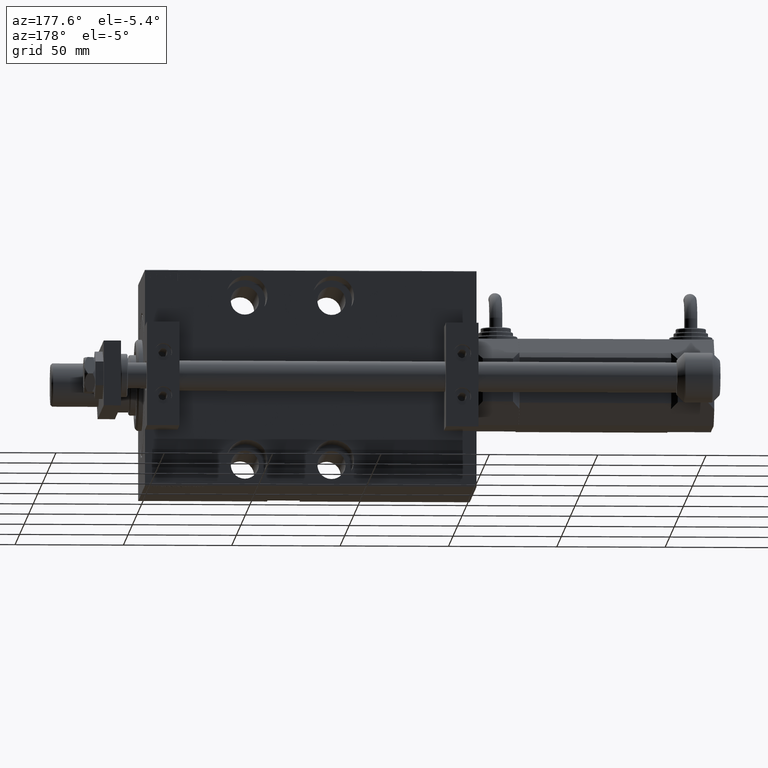
[diagram: clean part render]
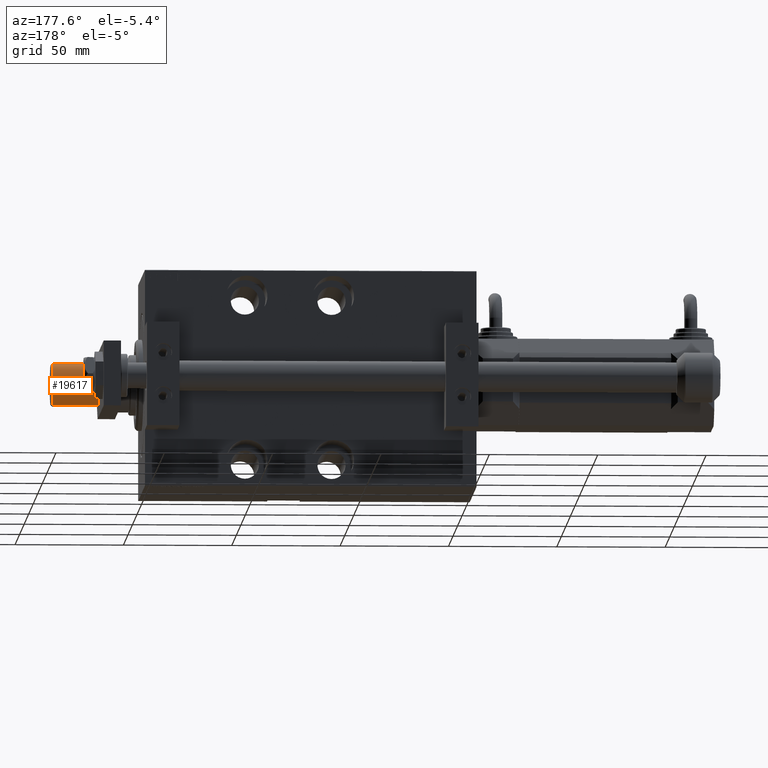
[diagram: same view with one face highlighted and labeled with its STEP entity id]
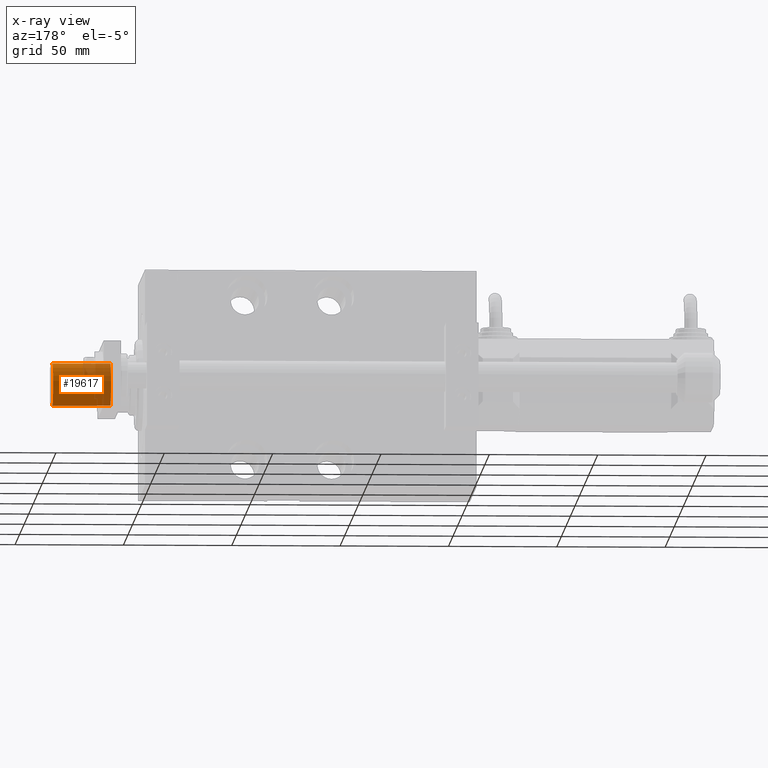
[diagram: x-ray of the same camera — body ghosted, the highlighted face saturated]
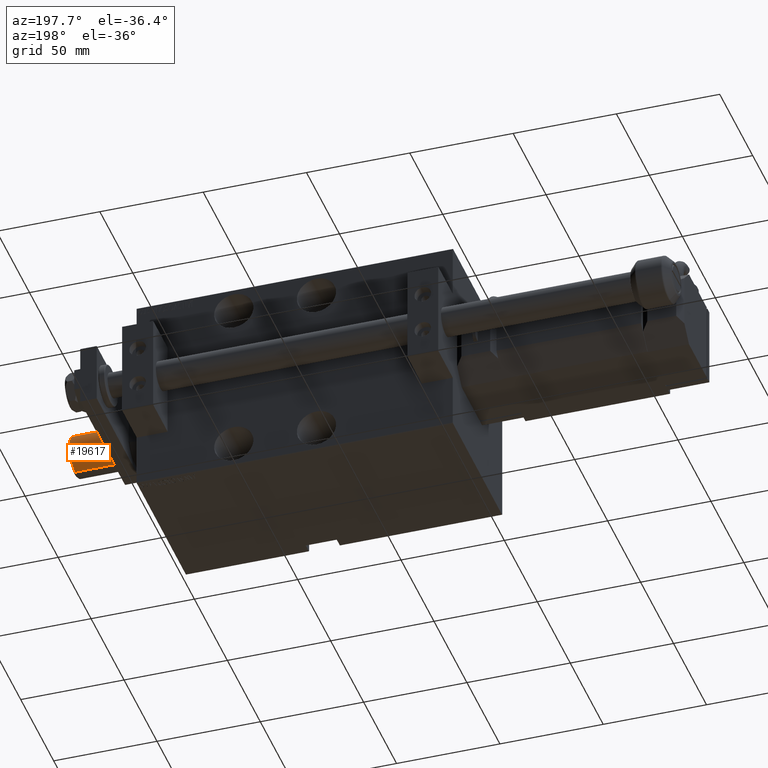
[diagram: same view with one face highlighted and labeled with its STEP entity id]
A machine part, auxiliary view. The second image highlights one B-rep face of the part: STEP entity #19617.
The next image is the same camera in x-ray: the body ghosted, the highlighted face saturated — about 40% of this face is hidden behind the body in this view.
A second angle (auxiliary view) of the same face is appended — the face is thin or edge-on in the first view.
In plain terms, the highlighted cylindrical surface (edge-blend (fillet) strip) has radius 10 mm, axis along (1, 0, -0).
Its self-contained STEP definition (entity closure, byte-faithful):
#1890 = AXIS2_PLACEMENT_3D ( 'NONE', #34598, #39149, #46983 ) ;
#2088 = CARTESIAN_POINT ( 'NONE',  ( 10.00000000000000000, 1.224646799147353256E-15, 27.50000000000000000 ) ) ;
#3909 = VERTEX_POINT ( 'NONE', #37689 ) ;
#5229 = VERTEX_POINT ( 'NONE', #10093 ) ;
#5356 = EDGE_CURVE ( 'NONE', #3909, #5229, #43124, .T. ) ;
#7538 = EDGE_CURVE ( 'NONE', #13533, #5229, #8963, .T. ) ;
#8963 = LINE ( 'NONE', #24411, #9245 ) ;
#9245 = VECTOR ( 'NONE', #39842, 1000.000000000000000 ) ;
#9798 = ORIENTED_EDGE ( 'NONE', *, *, #35776, .T. ) ;
#10093 = CARTESIAN_POINT ( 'NONE',  ( -10.00000000000000000, 0.000000000000000000, 0.7999999999999986011 ) ) ;
#10274 = CARTESIAN_POINT ( 'NONE',  ( -10.00000000000000000, 0.000000000000000000, 27.50000000000000000 ) ) ;
#11646 = VECTOR ( 'NONE', #17560, 1000.000000000000000 ) ;
#13533 = VERTEX_POINT ( 'NONE', #10274 ) ;
#13804 = DIRECTION ( 'NONE',  ( 1.000000000000000000, 0.000000000000000000, 0.000000000000000000 ) ) ;
#14088 = FACE_OUTER_BOUND ( 'NONE', #34815, .T. ) ;
#16673 = CARTESIAN_POINT ( 'NONE',  ( 10.00000000000000000, 1.224646799147353256E-15, 27.50000000000000000 ) ) ;
#17560 = DIRECTION ( 'NONE',  ( -0.000000000000000000, -0.000000000000000000, -1.000000000000000000 ) ) ;
#18376 = DIRECTION ( 'NONE',  ( -0.000000000000000000, -0.000000000000000000, -1.000000000000000000 ) ) ;
#19617 = ADVANCED_FACE ( 'NONE', ( #14088 ), #21444, .T. ) ;
#21444 = CYLINDRICAL_SURFACE ( 'NONE', #43507, 10.00000000000000000 ) ;
#24411 = CARTESIAN_POINT ( 'NONE',  ( -10.00000000000000000, 0.000000000000000000, 27.50000000000000000 ) ) ;
#25975 = CARTESIAN_POINT ( 'NONE',  ( 0.000000000000000000, 0.000000000000000000, 27.50000000000000000 ) ) ;
#26823 = EDGE_CURVE ( 'NONE', #35158, #13533, #31640, .T. ) ;
#28491 = DIRECTION ( 'NONE',  ( 0.000000000000000000, 0.000000000000000000, 1.000000000000000000 ) ) ;
#31640 = CIRCLE ( 'NONE', #38108, 10.00000000000000000 ) ;
#33559 = ORIENTED_EDGE ( 'NONE', *, *, #5356, .T. ) ;
#34598 = CARTESIAN_POINT ( 'NONE',  ( 0.000000000000000000, 0.000000000000000000, 0.7999999999999986011 ) ) ;
#34815 = EDGE_LOOP ( 'NONE', ( #35726, #9798, #33559, #38848 ) ) ;
#35158 = VERTEX_POINT ( 'NONE', #16673 ) ;
#35726 = ORIENTED_EDGE ( 'NONE', *, *, #26823, .F. ) ;
#35776 = EDGE_CURVE ( 'NONE', #35158, #3909, #36793, .T. ) ;
#36793 = LINE ( 'NONE', #2088, #11646 ) ;
#37689 = CARTESIAN_POINT ( 'NONE',  ( 10.00000000000000000, 1.224646799147353256E-15, 0.7999999999999986011 ) ) ;
#38108 = AXIS2_PLACEMENT_3D ( 'NONE', #43651, #28491, #13804 ) ;
#38848 = ORIENTED_EDGE ( 'NONE', *, *, #7538, .F. ) ;
#39149 = DIRECTION ( 'NONE',  ( -0.000000000000000000, -0.000000000000000000, 1.000000000000000000 ) ) ;
#39842 = DIRECTION ( 'NONE',  ( -0.000000000000000000, -0.000000000000000000, -1.000000000000000000 ) ) ;
#40908 = DIRECTION ( 'NONE',  ( -1.000000000000000000, 0.000000000000000000, 0.000000000000000000 ) ) ;
#43124 = CIRCLE ( 'NONE', #1890, 10.00000000000000000 ) ;
#43507 = AXIS2_PLACEMENT_3D ( 'NONE', #25975, #18376, #40908 ) ;
#43651 = CARTESIAN_POINT ( 'NONE',  ( 0.000000000000000000, 0.000000000000000000, 27.50000000000000000 ) ) ;
#46983 = DIRECTION ( 'NONE',  ( 1.000000000000000000, 0.000000000000000000, 0.000000000000000000 ) ) ;